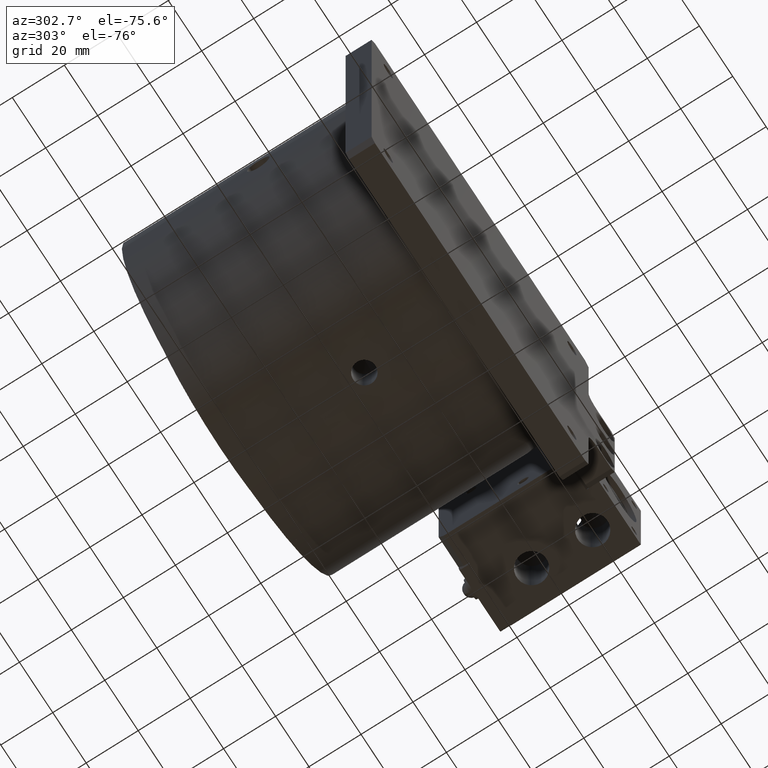
[diagram: clean part render]
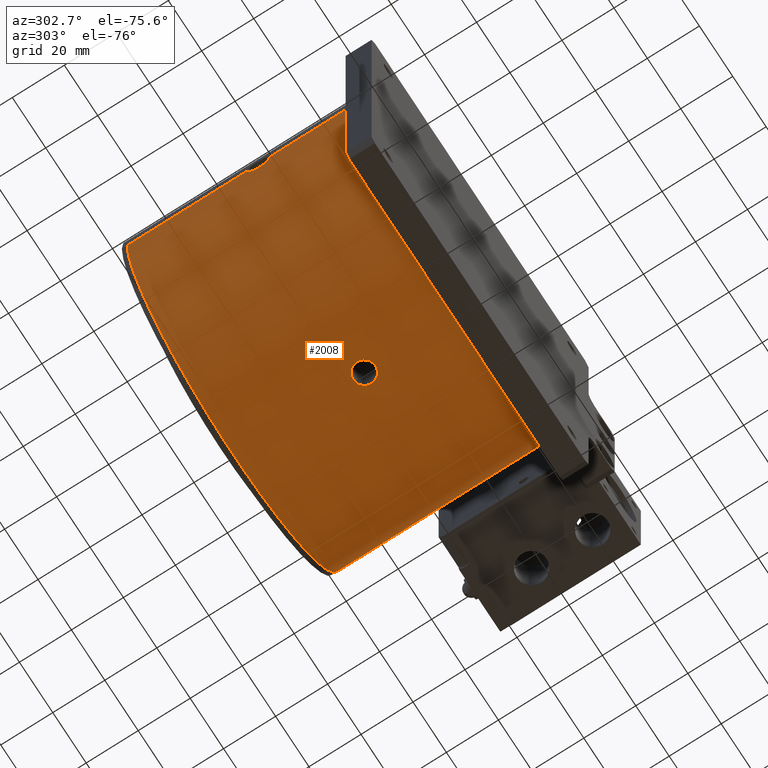
[diagram: same view with one face highlighted and labeled with its STEP entity id]
A machine part, auxiliary view. The second image highlights one B-rep face of the part: STEP entity #2008.
In plain terms, the highlighted cylindrical surface (partial cylindrical patch) has radius 63.5 mm, axis along (0, 1, 0).
Its self-contained STEP definition (entity closure, byte-faithful):
#324=CARTESIAN_POINT('',(0.E0,0.E0,0.E0));
#325=DIRECTION('',(0.E0,-1.E0,0.E0));
#326=DIRECTION('',(1.E0,0.E0,0.E0));
#327=AXIS2_PLACEMENT_3D('',#324,#325,#326);
#551=CARTESIAN_POINT('',(-4.283E0,-3.45E1,6.335539370093E1));
#552=CARTESIAN_POINT('',(-4.283E0,-3.476648148934E1,6.335539370093E1));
#553=CARTESIAN_POINT('',(-4.234217896886E0,-3.528931659746E1,6.335871981536E1));
#554=CARTESIAN_POINT('',(-4.016996533768E0,-3.605529503103E1,6.337302517262E1));
#555=CARTESIAN_POINT('',(-3.662794753590E0,-3.676668157835E1,6.339473020212E1));
#556=CARTESIAN_POINT('',(-3.183483023014E0,-3.740174372639E1,6.342090401965E1));
#557=CARTESIAN_POINT('',(-2.595434694699E0,-3.793775605306E1,6.344799682844E1));
#558=CARTESIAN_POINT('',(-1.919076072444E0,-3.835634523920E1,6.347232839458E1));
#559=CARTESIAN_POINT('',(-1.177844180540E0,-3.864325882580E1,6.349061273615E1));
#560=CARTESIAN_POINT('',(-3.970468514578E-1,-3.878906303165E1,
6.350040445028E1));
#561=CARTESIAN_POINT('',(3.970477765583E-1,-3.878906305452E1,6.350040445152E1));
#562=CARTESIAN_POINT('',(1.177846898680E0,-3.864325807733E1,6.349061268679E1));
#563=CARTESIAN_POINT('',(1.919077315038E0,-3.835634450284E1,6.347232835025E1));
#564=CARTESIAN_POINT('',(2.595435285292E0,-3.793775562669E1,6.344799680621E1));
#565=CARTESIAN_POINT('',(3.183485138483E0,-3.740174184932E1,6.342090392022E1));
#566=CARTESIAN_POINT('',(3.662798473017E0,-3.676667550110E1,6.339472998461E1));
#567=CARTESIAN_POINT('',(4.016996938891E0,-3.605529310492E1,6.337302514259E1));
#568=CARTESIAN_POINT('',(4.234217835126E0,-3.528931674447E1,6.335871982035E1));
#569=CARTESIAN_POINT('',(4.283E0,-3.476648175584E1,6.335539370093E1));
#570=CARTESIAN_POINT('',(4.283E0,-3.45E1,6.335539370093E1));
#575=CARTESIAN_POINT('',(4.283E0,-3.45E1,6.335539370093E1));
#576=CARTESIAN_POINT('',(4.283E0,-3.423351848823E1,6.335539370093E1));
#577=CARTESIAN_POINT('',(4.234217888835E0,-3.371068334059E1,6.335871981591E1));
#578=CARTESIAN_POINT('',(4.016996494860E0,-3.294470486020E1,6.337302517515E1));
#579=CARTESIAN_POINT('',(3.662794673578E0,-3.223331828915E1,6.339473020682E1));
#580=CARTESIAN_POINT('',(3.183482904359E0,-3.159825614067E1,6.342090402575E1));
#581=CARTESIAN_POINT('',(2.595434528677E0,-3.106224382059E1,6.344799683532E1));
#582=CARTESIAN_POINT('',(1.919075868184E0,-3.064365465396E1,6.347232840112E1));
#583=CARTESIAN_POINT('',(1.177843905376E0,-3.035674110172E1,6.349061274095E1));
#584=CARTESIAN_POINT('',(3.970467725269E-1,-3.021093697166E1,6.350040445008E1));
#585=CARTESIAN_POINT('',(-3.970478643703E-1,-3.021093694185E1,
6.350040445174E1));
#586=CARTESIAN_POINT('',(-1.177847198621E0,-3.035674200147E1,6.349061268157E1));
#587=CARTESIAN_POINT('',(-1.919077545600E0,-3.064365561720E1,6.347232834290E1));
#588=CARTESIAN_POINT('',(-2.595435471482E0,-3.106224451524E1,6.344799679848E1));
#589=CARTESIAN_POINT('',(-3.183485271249E0,-3.159825829953E1,6.342090391340E1));
#590=CARTESIAN_POINT('',(-3.662798561675E0,-3.223332464576E1,6.339472997940E1));
#591=CARTESIAN_POINT('',(-4.016996982579E0,-3.294470701694E1,6.337302513975E1));
#592=CARTESIAN_POINT('',(-4.234217844111E0,-3.371068332488E1,6.335871981973E1));
#593=CARTESIAN_POINT('',(-4.283E0,-3.423351826932E1,6.335539370093E1));
#594=CARTESIAN_POINT('',(-4.283E0,-3.45E1,6.335539370093E1));
#599=CARTESIAN_POINT('',(-6.35E1,-3.0217E1,0.E0));
#600=CARTESIAN_POINT('',(-6.35E1,-3.0217E1,2.483934571127E-1));
#601=CARTESIAN_POINT('',(-6.349713239431E1,-3.025919254058E1,
7.392109344075E-1));
#602=CARTESIAN_POINT('',(-6.348423086525E1,-3.045480183852E1,1.474505666329E0));
#603=CARTESIAN_POINT('',(-6.346442346702E1,-3.077540466870E1,2.157563153795E0));
#604=CARTESIAN_POINT('',(-6.344070149884E1,-3.119957705313E1,2.763480126936E0));
#605=CARTESIAN_POINT('',(-6.341478642144E1,-3.173538921923E1,3.300807030858E0));
#606=CARTESIAN_POINT('',(-6.339036493064E1,-3.236072315941E1,3.736044971035E0));
#607=CARTESIAN_POINT('',(-6.337088256922E1,-3.304183064842E1,4.049893206281E0));
#608=CARTESIAN_POINT('',(-6.335833442306E1,-3.375784764735E1,4.239814985318E0));
#609=CARTESIAN_POINT('',(-6.335392968605E1,-3.449889263891E1,4.304499857881E0));
#610=CARTESIAN_POINT('',(-6.335830910113E1,-3.523967246839E1,4.240184654317E0));
#611=CARTESIAN_POINT('',(-6.337080490488E1,-3.595491285732E1,4.051101872772E0));
#612=CARTESIAN_POINT('',(-6.339031831355E1,-3.663807243951E1,3.736857375947E0));
#613=CARTESIAN_POINT('',(-6.341474704378E1,-3.726364880070E1,3.301525980053E0));
#614=CARTESIAN_POINT('',(-6.344060873895E1,-3.779862684675E1,2.765524441573E0));
#615=CARTESIAN_POINT('',(-6.346434741328E1,-3.822333556918E1,2.159877281691E0));
#616=CARTESIAN_POINT('',(-6.348421348979E1,-3.854493915187E1,1.475459991852E0));
#617=CARTESIAN_POINT('',(-6.349713195935E1,-3.874080019666E1,
7.394000132179E-1));
#618=CARTESIAN_POINT('',(-6.35E1,-3.8783E1,2.483982576794E-1));
#619=CARTESIAN_POINT('',(-6.35E1,-3.8783E1,0.E0));
#624=DIRECTION('',(0.E0,-1.E0,0.E0));
#625=VECTOR('',#624,8.5E1);
#626=CARTESIAN_POINT('',(6.35E1,0.E0,0.E0));
#627=LINE('',#626,#625);
#826=DIRECTION('',(0.E0,-1.E0,0.E0));
#827=VECTOR('',#826,4.6217E1);
#828=CARTESIAN_POINT('',(-6.35E1,-3.8783E1,0.E0));
#829=LINE('',#828,#827);
#833=DIRECTION('',(0.E0,-1.E0,0.E0));
#834=VECTOR('',#833,3.0217E1);
#835=CARTESIAN_POINT('',(-6.35E1,0.E0,0.E0));
#836=LINE('',#835,#834);
#937=CARTESIAN_POINT('',(0.E0,-8.5E1,0.E0));
#938=DIRECTION('',(0.E0,-1.E0,0.E0));
#939=DIRECTION('',(1.E0,0.E0,0.E0));
#940=AXIS2_PLACEMENT_3D('',#937,#938,#939);
#1706=CARTESIAN_POINT('',(6.35E1,-8.5E1,0.E0));
#1707=CARTESIAN_POINT('',(-6.35E1,-8.5E1,1.555301434917E-14));
#1708=VERTEX_POINT('',#1706);
#1709=VERTEX_POINT('',#1707);
#1710=CARTESIAN_POINT('',(6.35E1,0.E0,0.E0));
#1711=CARTESIAN_POINT('',(-6.35E1,0.E0,1.555301434917E-14));
#1712=VERTEX_POINT('',#1710);
#1713=VERTEX_POINT('',#1711);
#1876=VERTEX_POINT('',#551);
#1877=VERTEX_POINT('',#570);
#1884=VERTEX_POINT('',#599);
#1885=VERTEX_POINT('',#619);
#1984=CARTESIAN_POINT('',(0.E0,0.E0,0.E0));
#1985=DIRECTION('',(0.E0,-1.E0,0.E0));
#1986=DIRECTION('',(1.E0,0.E0,0.E0));
#1987=AXIS2_PLACEMENT_3D('',#1984,#1985,#1986);
#1988=CYLINDRICAL_SURFACE('',#1987,6.35E1);
#1990=ORIENTED_EDGE('',*,*,#1989,.F.);
#1992=ORIENTED_EDGE('',*,*,#1991,.F.);
#1993=ORIENTED_EDGE('',*,*,#1977,.F.);
#1995=ORIENTED_EDGE('',*,*,#1994,.T.);
#1997=ORIENTED_EDGE('',*,*,#1996,.T.);
#1999=ORIENTED_EDGE('',*,*,#1998,.F.);
#2000=EDGE_LOOP('',(#1990,#1992,#1993,#1995,#1997,#1999));
#2001=FACE_OUTER_BOUND('',#2000,.F.);
#2003=ORIENTED_EDGE('',*,*,#2002,.T.);
#2005=ORIENTED_EDGE('',*,*,#2004,.T.);
#2006=EDGE_LOOP('',(#2003,#2005));
#2007=FACE_BOUND('',#2006,.F.);
#328=CIRCLE('',#327,6.35E1);
#571=B_SPLINE_CURVE_WITH_KNOTS('',3,(#551,#552,#553,#554,#555,#556,#557,#558,
#559,#560,#561,#562,#563,#564,#565,#566,#567,#568,#569,#570),.UNSPECIFIED.,.F.,
.F.,(4,1,1,1,1,1,1,1,1,1,1,1,1,1,1,1,1,4),(0.E0,5.882352941176E-2,
1.176470588235E-1,1.764705882353E-1,2.352941176471E-1,2.941176470588E-1,
3.529411764706E-1,4.117647058824E-1,4.705882352941E-1,5.294117647059E-1,
5.882352941176E-1,6.470588235294E-1,7.058823529412E-1,7.647058823529E-1,
8.235294117647E-1,8.823529411765E-1,9.411764705882E-1,1.E0),.UNSPECIFIED.);
#595=B_SPLINE_CURVE_WITH_KNOTS('',3,(#575,#576,#577,#578,#579,#580,#581,#582,
#583,#584,#585,#586,#587,#588,#589,#590,#591,#592,#593,#594),.UNSPECIFIED.,.F.,
.F.,(4,1,1,1,1,1,1,1,1,1,1,1,1,1,1,1,1,4),(0.E0,5.882352941176E-2,
1.176470588235E-1,1.764705882353E-1,2.352941176471E-1,2.941176470588E-1,
3.529411764706E-1,4.117647058824E-1,4.705882352941E-1,5.294117647059E-1,
5.882352941176E-1,6.470588235294E-1,7.058823529412E-1,7.647058823529E-1,
8.235294117647E-1,8.823529411765E-1,9.411764705882E-1,1.E0),.UNSPECIFIED.);
#620=B_SPLINE_CURVE_WITH_KNOTS('',3,(#599,#600,#601,#602,#603,#604,#605,#606,
#607,#608,#609,#610,#611,#612,#613,#614,#615,#616,#617,#618,#619),.UNSPECIFIED.,
.F.,.F.,(4,1,1,1,1,1,1,1,1,1,1,1,1,1,1,1,1,1,4),(0.E0,5.555555555556E-2,
1.111111111111E-1,1.666666666667E-1,2.222222222222E-1,2.777777777778E-1,
3.333333333333E-1,3.888888888889E-1,4.444444444444E-1,5.E-1,5.555555555556E-1,
6.111111111111E-1,6.666666666667E-1,7.222222222222E-1,7.777777777778E-1,
8.333333333333E-1,8.888888888889E-1,9.444444444444E-1,1.E0),.UNSPECIFIED.);
#941=CIRCLE('',#940,6.35E1);
#1977=EDGE_CURVE('',#1712,#1713,#328,.T.);
#1989=EDGE_CURVE('',#1884,#1885,#620,.T.);
#1991=EDGE_CURVE('',#1713,#1884,#836,.T.);
#1994=EDGE_CURVE('',#1712,#1708,#627,.T.);
#1996=EDGE_CURVE('',#1708,#1709,#941,.T.);
#1998=EDGE_CURVE('',#1885,#1709,#829,.T.);
#2002=EDGE_CURVE('',#1876,#1877,#571,.T.);
#2004=EDGE_CURVE('',#1877,#1876,#595,.T.);
#2008=ADVANCED_FACE('',(#2001,#2007),#1988,.T.);